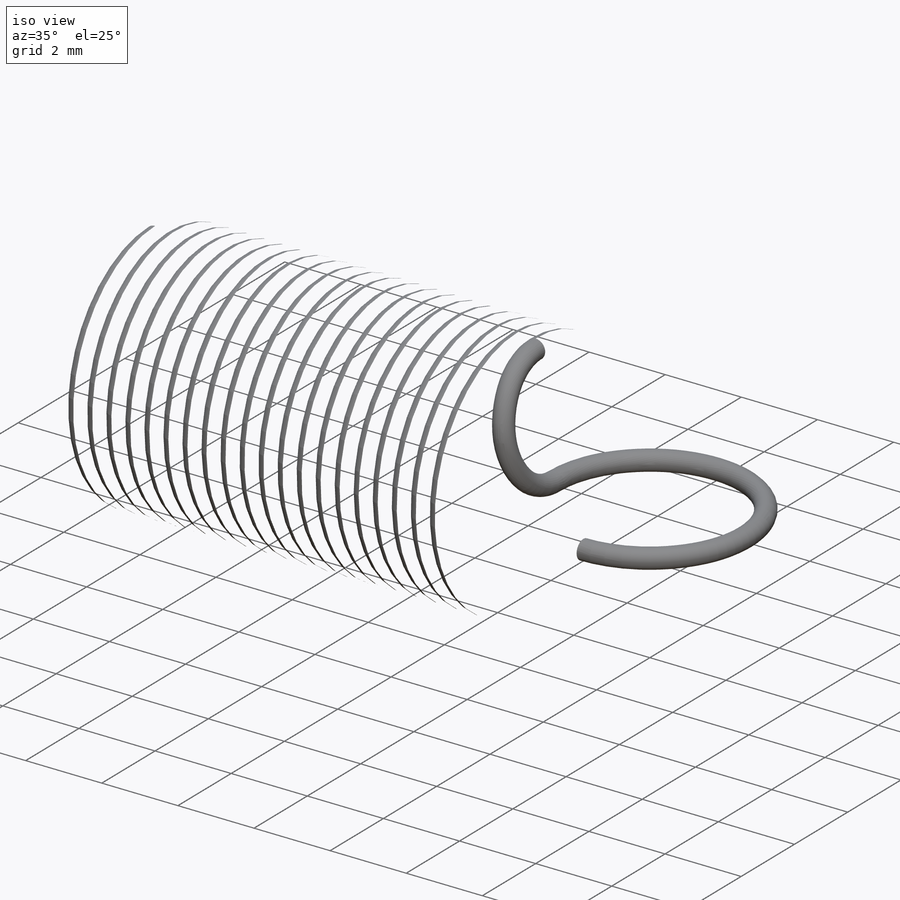
[diagram: iso view]
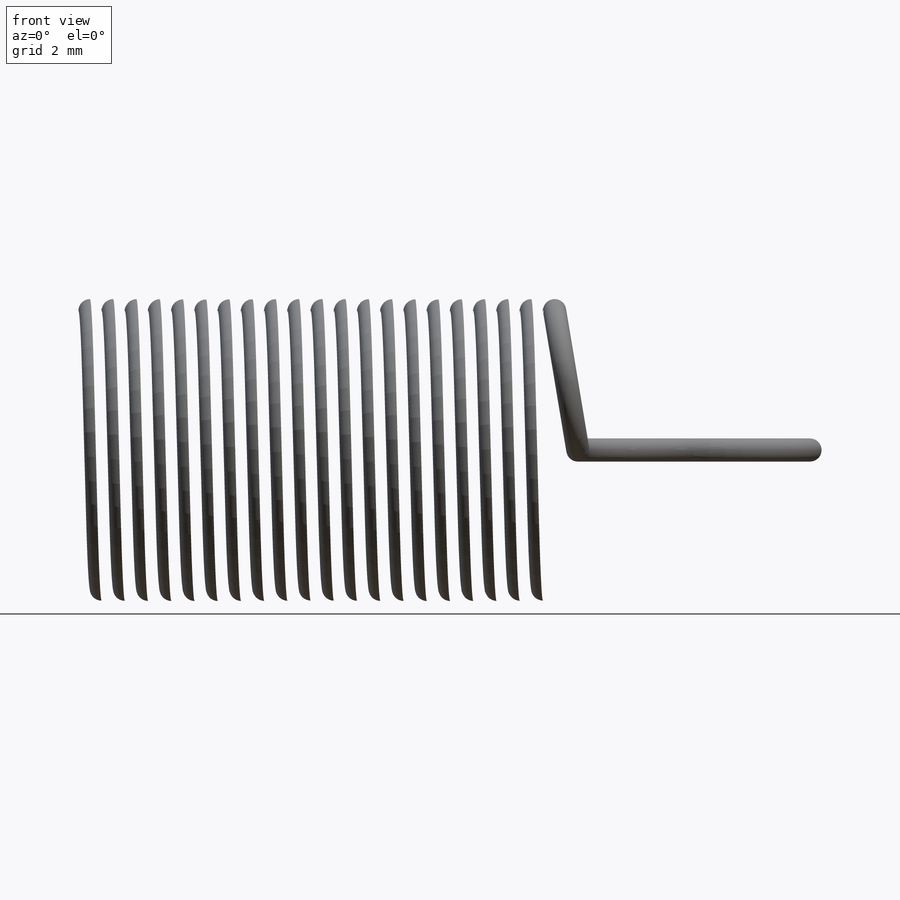
[diagram: front view]
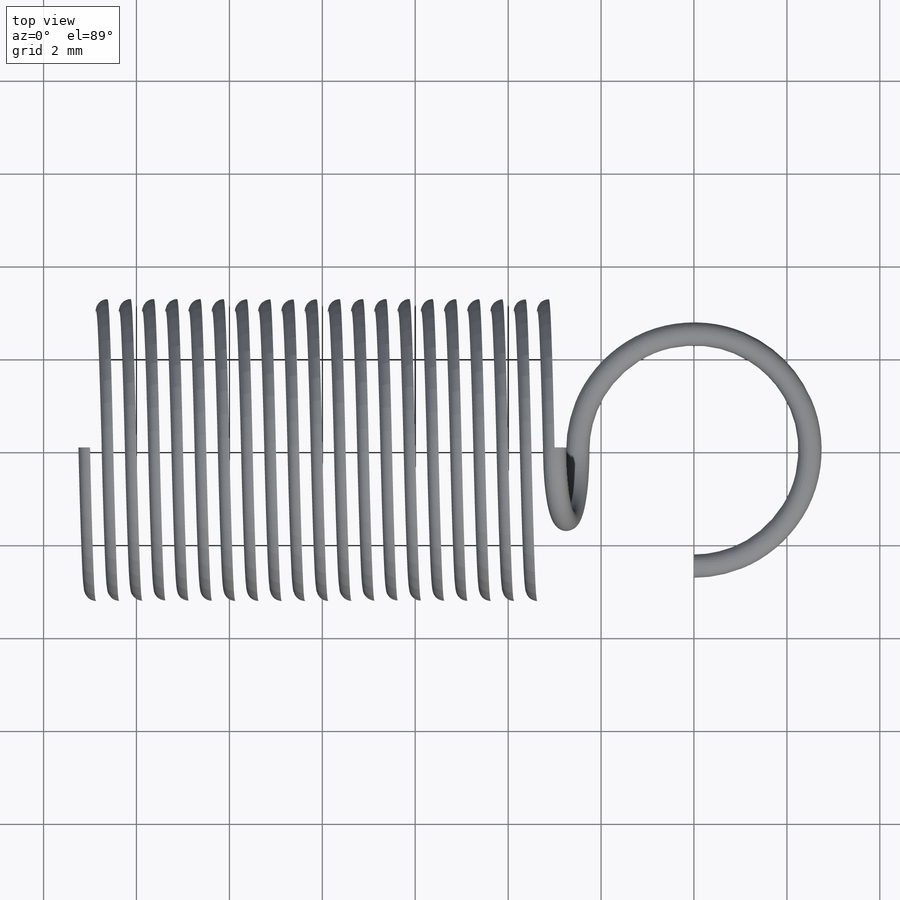
[diagram: top view]
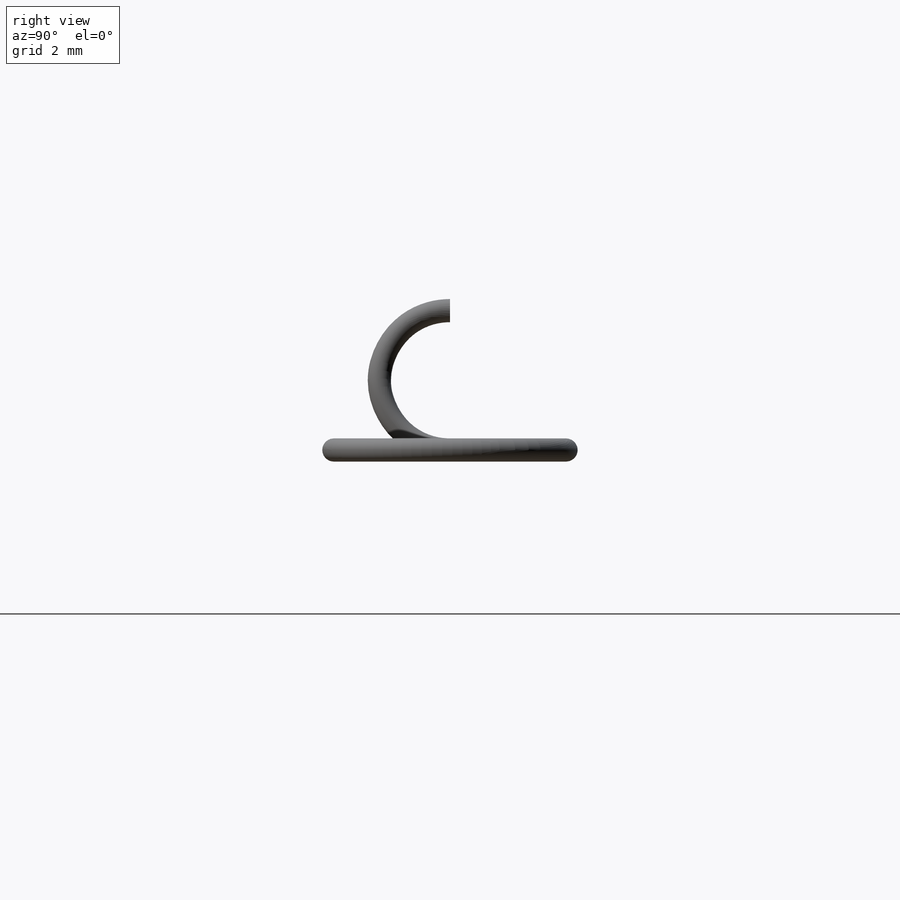
[diagram: right view]
SOLIDWORKS PART (.sldprt)
format: sldprt  version: not decoded by parser v0  size: 2,423,296 bytes
history: native  units: mm
features: sketch x15, plane x6, sweep x5, material x1, helix x1 + 1 further entry (+12 scaffold rows collapsed)
feature tree (41):
  scaffold x12  (default folders/planes/origin — collapsed)
  material  "AISI 304"
  plane  "Mid Plane"  Offset=21.7805mm
  "Design Table"
  sketch  "Sketch1"  dims[D1=~90.085322mm D2=~1.146551mm D3=5.1816mm]
  plane  "Plane1"
  sketch  "Sketch2"  dims[D1=3.937mm]
  plane  "Plane2"
  sketch  "Sketch3"
  sketch  "Sketch4"  dims[D1=~0.985385mm]
  sweep  "Sweep1"
  sketch  "Sketch5"
  sweep  "Sweep2"
  sketch  "Sketch6"  dims[D1=7.874mm]
  sketch  "Sketch10"
  sketch  "Sketch9"  dims[D1=~53.434603mm]
  plane  "Plane6"  Offset=21.7805mm
  plane  "Plane3"  Offset=5.1816mm
  sketch  "Sketch - Length of Spring"  dims[c1.D1=9.525mm c1.D3=9.525mm c1.D8=1.27mm c1.D6=9.525mm c1.D2=~60.940345mm c2.D3=25.7175mm c2.D4=1.27mm c2.D5=3.175mm c2.D6=1.5875mm c2.D7=2.286mm c2.D8=1.27mm c2.D2=21.7805mm c2.D1=1.27mm c3.D4=1.27mm c3.D6=1.5875mm c3.D8=51.435mm c3.D1=3.175mm c3.D3=1.5875mm c4.D4=1.27mm c4.D5=1.27mm c4.D9=3.937mm]
  sketch  "Sketch11"
  sketch  "Sketch12"
  sketch  "Sketch15"
  sketch  "Sketch18"
  sweep  "Sweep6"
  plane  "Plane5"
  sketch  "Sketch13"
  sketch  "Sketch19"
  sweep  "Sweep7"
  helix  "Helix/Spiral2"  Pitch=33.1978mm
  sweep  "Sweep8"
decode coverage: 7 of 21 modeling features carry decoded parameters; 1 rows unclassified (native names shown)
note: ~ marks probable driven/reference dimensions
summary: profile_refs inferred from adjacent sketches, not decoded
note: suppression state not decoded; provenance and decode notes live in map.json
